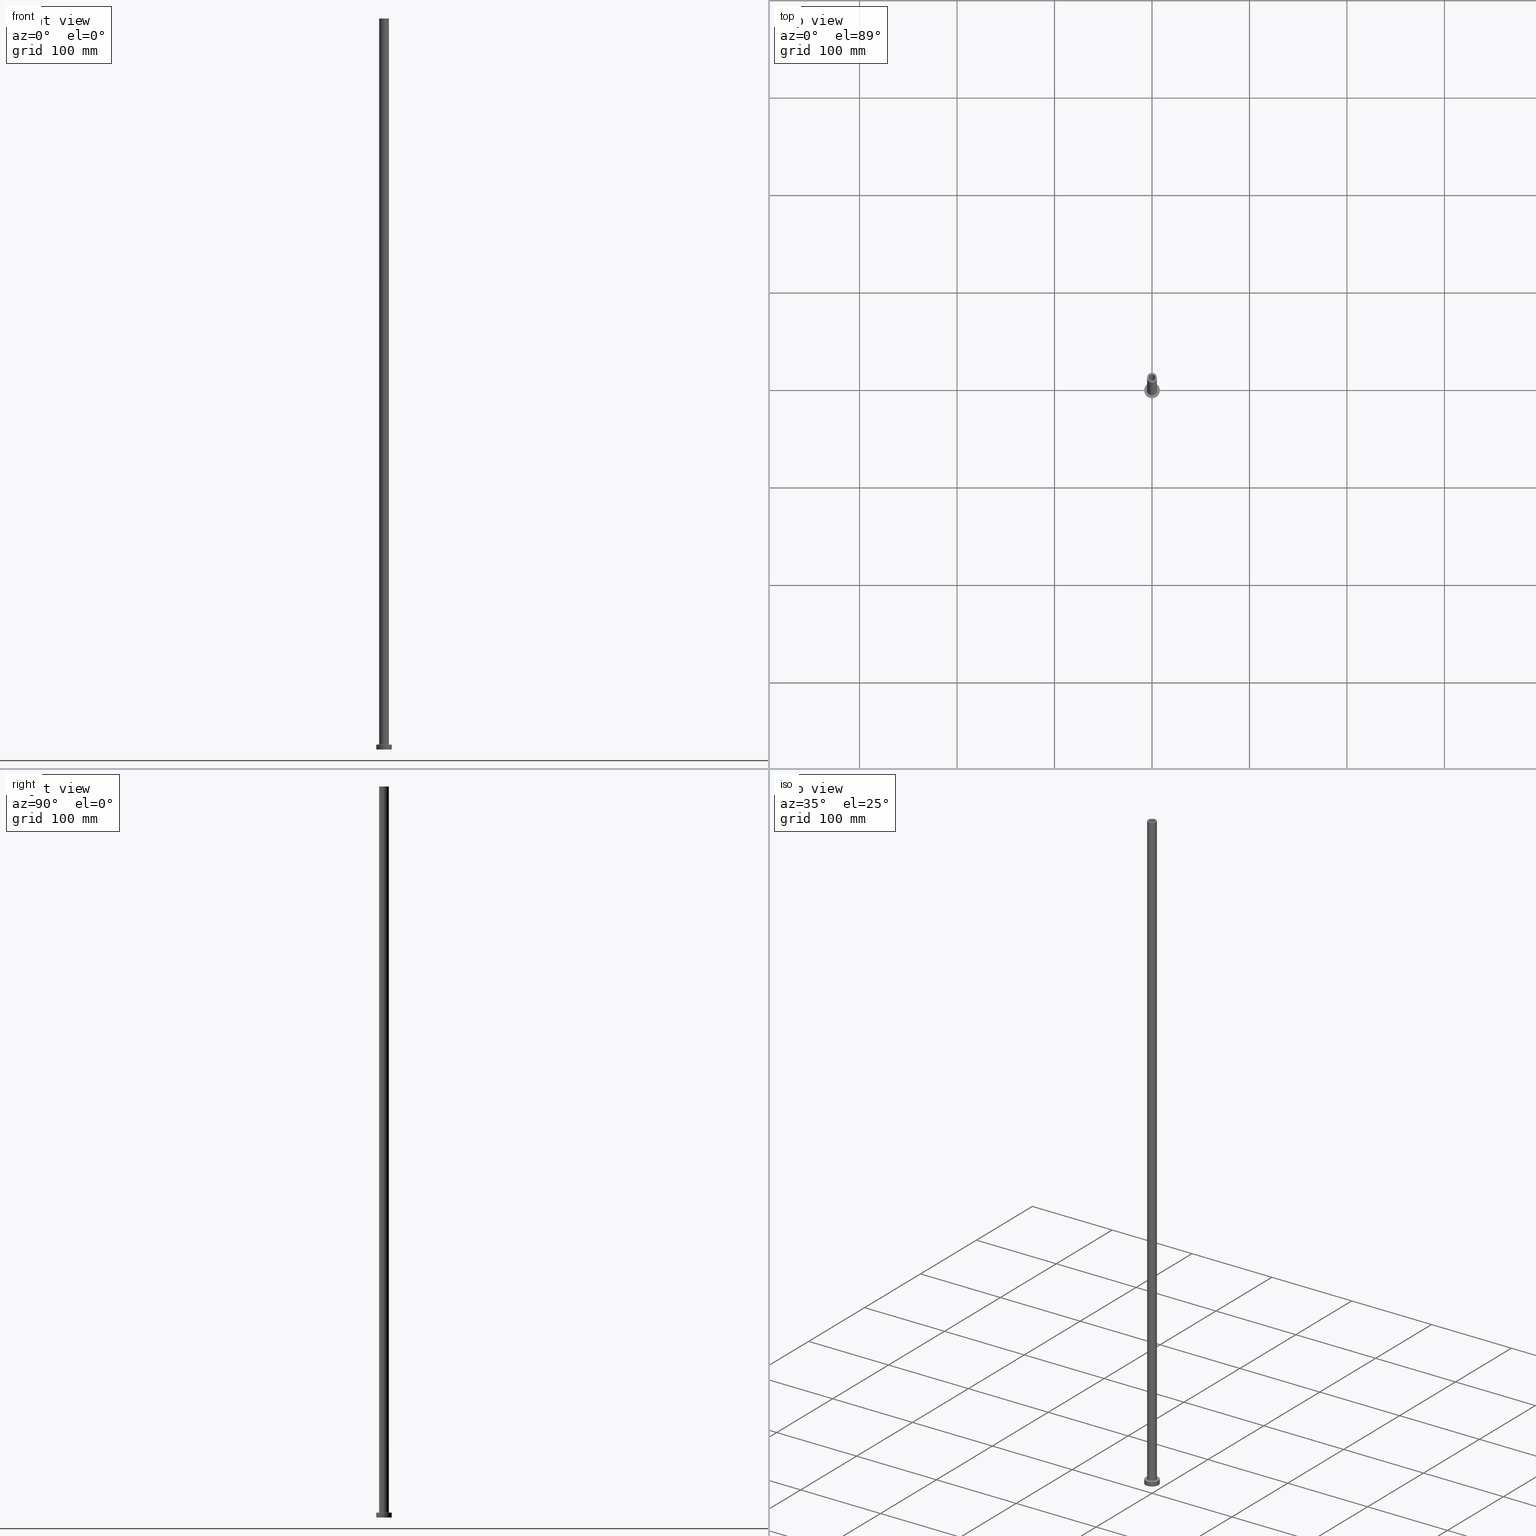
[diagram: canonical four-view strip — front | top / right | iso, engineering-drawing reading convention]
A machine part, canonical four-view strip (front | top / right | iso — engineering-drawing reading convention). The complete STEP part file that produces these views, byte-faithful:
ISO-10303-21;
HEADER;
FILE_DESCRIPTION (( 'STEP AP203' ),
    '1' );
FILE_NAME ('68ef.STEP',
    '2023-02-13T13:59:46',
    ( '' ),
    ( '' ),
    'SwSTEP 2.0',
    'SolidWorks 2019',
    '' );
FILE_SCHEMA (( 'CONFIG_CONTROL_DESIGN' ));
ENDSEC;

DATA;
#1 = VERTEX_POINT ( 'NONE', #306 ) ;
#2 = DIRECTION ( 'NONE',  ( 1.000000000000000000, 0.000000000000000000, -0.000000000000000000 ) ) ;
#3 = VECTOR ( 'NONE', #49, 1000.000000000000000 ) ;
#4 = CYLINDRICAL_SURFACE ( 'NONE', #377, 3.250000000000000444 ) ;
#5 = CARTESIAN_POINT ( 'NONE',  ( 5.500000000000000000, 0.000000000000000000, 4.999999999999975131 ) ) ;
#6 = ORIENTED_EDGE ( 'NONE', *, *, #98, .F. ) ;
#7 = CARTESIAN_POINT ( 'NONE',  ( -3.250000000000000444, 0.000000000000000000, 705.0000000000000000 ) ) ;
#8 = VERTEX_POINT ( 'NONE', #167 ) ;
#9 = VERTEX_POINT ( 'NONE', #165 ) ;
#10 = PLANE ( 'NONE',  #212 ) ;
#11 = AXIS2_PLACEMENT_3D ( 'NONE', #201, #347, #394 ) ;
#12 = DIRECTION ( 'NONE',  ( 0.000000000000000000, -1.000000000000000000, 0.000000000000000000 ) ) ;
#13 = ADVANCED_FACE ( 'NONE', ( #459 ), #203, .F. ) ;
#14 = ADVANCED_FACE ( 'NONE', ( #455 ), #171, .T. ) ;
#15 = EDGE_CURVE ( 'NONE', #160, #246, #121, .T. ) ;
#16 = EDGE_CURVE ( 'NONE', #184, #47, #166, .T. ) ;
#17 = ORIENTED_EDGE ( 'NONE', *, *, #428, .F. ) ;
#18 = FACE_OUTER_BOUND ( 'NONE', #340, .T. ) ;
#19 = PERSON_AND_ORGANIZATION ( #147, #439 ) ;
#20 = CIRCLE ( 'NONE', #45, 3.399999999999999911 ) ;
#21 = AXIS2_PLACEMENT_3D ( 'NONE', #299, #383, #332 ) ;
#22 = CARTESIAN_POINT ( 'NONE',  ( -8.000000000000000000, 0.000000000000000000, 0.000000000000000000 ) ) ;
#23 = ORIENTED_EDGE ( 'NONE', *, *, #381, .F. ) ;
#24 = CIRCLE ( 'NONE', #337, 3.399999999999999911 ) ;
#25 = VERTEX_POINT ( 'NONE', #277 ) ;
#26 = PERSON_AND_ORGANIZATION ( #147, #439 ) ;
#27 = ORIENTED_EDGE ( 'NONE', *, *, #139, .T. ) ;
#28 = AXIS2_PLACEMENT_3D ( 'NONE', #287, #214, #110 ) ;
#29 = DIRECTION ( 'NONE',  ( 0.000000000000000000, 0.000000000000000000, -1.000000000000000000 ) ) ;
#30 = ORIENTED_EDGE ( 'NONE', *, *, #172, .T. ) ;
#31 = AXIS2_PLACEMENT_3D ( 'NONE', #176, #279, #71 ) ;
#32 = DIRECTION ( 'NONE',  ( 1.000000000000000000, 0.000000000000000000, 0.000000000000000000 ) ) ;
#33 = ADVANCED_FACE ( 'NONE', ( #127 ), #423, .T. ) ;
#34 = CARTESIAN_POINT ( 'NONE',  ( 0.000000000000000000, 0.000000000000000000, 750.0000000000000000 ) ) ;
#35 = MANIFOLD_SOLID_BREP ( 'Odebrat vysunut�m4', #263 ) ;
#36 = FACE_BOUND ( 'NONE', #37, .T. ) ;
#37 = EDGE_LOOP ( 'NONE', ( #180, #84 ) ) ;
#38 = LINE ( 'NONE', #426, #272 ) ;
#39 = CIRCLE ( 'NONE', #292, 8.000000000000000000 ) ;
#40 = ADVANCED_FACE ( 'NONE', ( #68 ), #443, .F. ) ;
#41 = VECTOR ( 'NONE', #65, 1000.000000000000000 ) ;
#42 = CYLINDRICAL_SURFACE ( 'NONE', #303, 8.000000000000000000 ) ;
#43 = DIRECTION ( 'NONE',  ( 1.000000000000000000, 0.000000000000000000, 0.000000000000000000 ) ) ;
#44 = FACE_OUTER_BOUND ( 'NONE', #327, .T. ) ;
#45 = AXIS2_PLACEMENT_3D ( 'NONE', #115, #395, #256 ) ;
#46 = CARTESIAN_POINT ( 'NONE',  ( 5.500000000000000000, 0.000000000000000000, 5.499999999999949374 ) ) ;
#47 = VERTEX_POINT ( 'NONE', #460 ) ;
#48 = ORIENTED_EDGE ( 'NONE', *, *, #112, .F. ) ;
#49 = DIRECTION ( 'NONE',  ( -0.000000000000000000, -0.000000000000000000, -1.000000000000000000 ) ) ;
#50 = APPROVAL_STATUS ( 'not_yet_approved' ) ;
#51 = DIRECTION ( 'NONE',  ( 1.000000000000000000, 0.000000000000000000, 0.000000000000000000 ) ) ;
#52 = DIRECTION ( 'NONE',  ( 1.000000000000000000, 0.000000000000000000, 0.000000000000000000 ) ) ;
#53 = ORIENTED_EDGE ( 'NONE', *, *, #58, .T. ) ;
#54 = APPROVAL_ROLE ( '' ) ;
#55 = ORIENTED_EDGE ( 'NONE', *, *, #381, .T. ) ;
#56 = CALENDAR_DATE ( 2023, 13, 2 ) ;
#57 = COORDINATED_UNIVERSAL_TIME_OFFSET ( 1, 0, .AHEAD. ) ;
#58 = EDGE_CURVE ( 'NONE', #25, #246, #134, .T. ) ;
#59 = PERSON_AND_ORGANIZATION_ROLE ( 'design_supplier' ) ;
#60 = CC_DESIGN_APPROVAL ( #202, ( #137 ) ) ;
#61 = DIRECTION ( 'NONE',  ( 0.000000000000000000, 0.000000000000000000, 1.000000000000000000 ) ) ;
#62 = CARTESIAN_POINT ( 'NONE',  ( 0.000000000000000000, 0.000000000000000000, 0.000000000000000000 ) ) ;
#63 = DIRECTION ( 'NONE',  ( 0.000000000000000000, 0.000000000000000000, 1.000000000000000000 ) ) ;
#64 = CIRCLE ( 'NONE', #28, 0.5000000000000004441 ) ;
#65 = DIRECTION ( 'NONE',  ( 0.000000000000000000, 0.000000000000000000, -1.000000000000000000 ) ) ;
#66 = LOCAL_TIME ( 14, 59, 46.00000000000000000, #118 ) ;
#67 = ORIENTED_EDGE ( 'NONE', *, *, #143, .T. ) ;
#68 = FACE_OUTER_BOUND ( 'NONE', #400, .T. ) ;
#69 = CC_DESIGN_PERSON_AND_ORGANIZATION_ASSIGNMENT ( #90, #86, ( #175 ) ) ;
#70 = FACE_OUTER_BOUND ( 'NONE', #149, .T. ) ;
#71 = DIRECTION ( 'NONE',  ( -1.000000000000000000, 0.000000000000000000, 0.000000000000000000 ) ) ;
#72 = CARTESIAN_POINT ( 'NONE',  ( 5.000000000000000000, 6.123233995736766282E-16, 750.0000000000000000 ) ) ;
#73 = DIRECTION ( 'NONE',  ( 0.000000000000000000, 0.000000000000000000, 1.000000000000000000 ) ) ;
#74 = ORIENTED_EDGE ( 'NONE', *, *, #16, .T. ) ;
#75 = FACE_OUTER_BOUND ( 'NONE', #133, .T. ) ;
#76 = VECTOR ( 'NONE', #366, 1000.000000000000000 ) ;
#77 = ORIENTED_EDGE ( 'NONE', *, *, #436, .F. ) ;
#78 = ORIENTED_EDGE ( 'NONE', *, *, #144, .T. ) ;
#79 = CARTESIAN_POINT ( 'NONE',  ( 0.000000000000000000, 0.000000000000000000, 705.0000000000000000 ) ) ;
#80 = COORDINATED_UNIVERSAL_TIME_OFFSET ( 1, 0, .AHEAD. ) ;
#81 = DATE_TIME_ROLE ( 'classification_date' ) ;
#82 = DIRECTION ( 'NONE',  ( -1.000000000000000000, 0.000000000000000000, 0.000000000000000000 ) ) ;
#83 = CC_DESIGN_PERSON_AND_ORGANIZATION_ASSIGNMENT ( #346, #302, ( #137 ) ) ;
#84 = ORIENTED_EDGE ( 'NONE', *, *, #401, .T. ) ;
#85 = PERSON_AND_ORGANIZATION ( #147, #439 ) ;
#86 = PERSON_AND_ORGANIZATION_ROLE ( 'design_owner' ) ;
#87 = CIRCLE ( 'NONE', #353, 8.000000000000000000 ) ;
#88 = DATE_AND_TIME ( #195, #268 ) ;
#89 = ORIENTED_EDGE ( 'NONE', *, *, #258, .T. ) ;
#90 = PERSON_AND_ORGANIZATION ( #147, #439 ) ;
#91 = ORIENTED_EDGE ( 'NONE', *, *, #152, .F. ) ;
#92 = APPROVAL_STATUS ( 'not_yet_approved' ) ;
#93 = DIRECTION ( 'NONE',  ( 1.000000000000000000, 0.000000000000000000, 0.000000000000000000 ) ) ;
#94 = CIRCLE ( 'NONE', #418, 3.250000000000000444 ) ;
#95 = LOCAL_TIME ( 14, 59, 46.00000000000000000, #295 ) ;
#96 = ORIENTED_EDGE ( 'NONE', *, *, #424, .F. ) ;
#97 = VECTOR ( 'NONE', #248, 1000.000000000000000 ) ;
#98 = EDGE_CURVE ( 'NONE', #388, #382, #419, .T. ) ;
#99 = DIRECTION ( 'NONE',  ( -0.000000000000000000, -0.000000000000000000, -1.000000000000000000 ) ) ;
#100 = ORIENTED_EDGE ( 'NONE', *, *, #188, .F. ) ;
#101 = CARTESIAN_POINT ( 'NONE',  ( 3.399999999999999911, 4.163799117101000559E-16, 714.6166522241369421 ) ) ;
#102 = DIRECTION ( 'NONE',  ( -1.000000000000000000, 0.000000000000000000, 0.000000000000000000 ) ) ;
#103 = AXIS2_PLACEMENT_3D ( 'NONE', #264, #185, #51 ) ;
#104 = VERTEX_POINT ( 'NONE', #205 ) ;
#105 = ADVANCED_FACE ( 'NONE', ( #132, #421 ), #352, .F. ) ;
#106 = CARTESIAN_POINT ( 'NONE',  ( 0.000000000000000000, 0.000000000000000000, 750.0000000000000000 ) ) ;
#107 = ORIENTED_EDGE ( 'NONE', *, *, #116, .F. ) ;
#108 = PRODUCT_DEFINITION_SHAPE ( 'NONE', 'NONE',  #333 ) ;
#109 = DIRECTION ( 'NONE',  ( 0.000000000000000000, 0.000000000000000000, 1.000000000000000000 ) ) ;
#110 = DIRECTION ( 'NONE',  ( -1.000000000000000000, 1.224646799147351482E-16, 0.000000000000000000 ) ) ;
#111 = ORIENTED_EDGE ( 'NONE', *, *, #125, .F. ) ;
#112 = EDGE_CURVE ( 'NONE', #104, #8, #24, .T. ) ;
#113 = ORIENTED_EDGE ( 'NONE', *, *, #98, .T. ) ;
#114 = DIRECTION ( 'NONE',  ( -1.000000000000000000, 0.000000000000000000, 0.000000000000000000 ) ) ;
#115 = CARTESIAN_POINT ( 'NONE',  ( 0.000000000000000000, 0.000000000000000000, 705.0000000000000000 ) ) ;
#116 = EDGE_CURVE ( 'NONE', #382, #427, #458, .T. ) ;
#117 = DIRECTION ( 'NONE',  ( 0.000000000000000000, 0.000000000000000000, 1.000000000000000000 ) ) ;
#118 = COORDINATED_UNIVERSAL_TIME_OFFSET ( 1, 0, .AHEAD. ) ;
#119 =( GEOMETRIC_REPRESENTATION_CONTEXT ( 3 ) GLOBAL_UNCERTAINTY_ASSIGNED_CONTEXT ( ( #241 ) ) GLOBAL_UNIT_ASSIGNED_CONTEXT ( ( #446, #225, #410 ) ) REPRESENTATION_CONTEXT ( 'NONE', 'WORKASPACE' ) );
#120 = DIRECTION ( 'NONE',  ( -0.000000000000000000, -0.000000000000000000, -1.000000000000000000 ) ) ;
#121 = CIRCLE ( 'NONE', #414, 3.250000000000000444 ) ;
#122 = CARTESIAN_POINT ( 'NONE',  ( 0.000000000000000000, 0.000000000000000000, 5.499999999999949374 ) ) ;
#123 = DIRECTION ( 'NONE',  ( 0.000000000000000000, 0.000000000000000000, 1.000000000000000000 ) ) ;
#124 = AXIS2_PLACEMENT_3D ( 'NONE', #161, #267, #304 ) ;
#125 = EDGE_CURVE ( 'NONE', #388, #417, #87, .T. ) ;
#126 = CARTESIAN_POINT ( 'NONE',  ( 8.000000000000000000, 9.797174393178825657E-16, 5.000000000000000000 ) ) ;
#127 = FACE_OUTER_BOUND ( 'NONE', #322, .T. ) ;
#128 = CIRCLE ( 'NONE', #168, 5.000000000000000000 ) ;
#129 = AXIS2_PLACEMENT_3D ( 'NONE', #122, #378, #52 ) ;
#130 = CARTESIAN_POINT ( 'NONE',  ( 0.000000000000000000, 0.000000000000000000, 705.0000000000000000 ) ) ;
#131 = AXIS2_PLACEMENT_3D ( 'NONE', #236, #243, #385 ) ;
#132 = FACE_BOUND ( 'NONE', #233, .T. ) ;
#133 = EDGE_LOOP ( 'NONE', ( #140, #23 ) ) ;
#134 = LINE ( 'NONE', #271, #41 ) ;
#135 = EDGE_CURVE ( 'NONE', #178, #9, #237, .T. ) ;
#136 = VECTOR ( 'NONE', #244, 1000.000000000000000 ) ;
#137 = SECURITY_CLASSIFICATION ( '', '', #200 ) ;
#138 = CARTESIAN_POINT ( 'NONE',  ( 5.000000000000000000, 6.123233995736766282E-16, 750.0000000000000000 ) ) ;
#139 = EDGE_CURVE ( 'NONE', #47, #184, #431, .T. ) ;
#140 = ORIENTED_EDGE ( 'NONE', *, *, #280, .F. ) ;
#141 = CARTESIAN_POINT ( 'NONE',  ( 0.000000000000000000, 0.000000000000000000, 705.0000000000000000 ) ) ;
#142 = DIRECTION ( 'NONE',  ( -1.000000000000000000, 0.000000000000000000, 0.000000000000000000 ) ) ;
#143 = EDGE_CURVE ( 'NONE', #282, #8, #312, .T. ) ;
#144 = EDGE_CURVE ( 'NONE', #429, #218, #128, .T. ) ;
#145 = CYLINDRICAL_SURFACE ( 'NONE', #31, 3.399999999999999911 ) ;
#146 = LOCAL_TIME ( 14, 59, 46.00000000000000000, #80 ) ;
#147 = PERSON ( 'NEUR�EN�', 'NEUR�EN�', 'NEUR�EN�', ('NEUR�EN�'), ('NEUR�EN�'), ('NEUR�EN�') ) ;
#148 = AXIS2_PLACEMENT_3D ( 'NONE', #208, #416, #102 ) ;
#149 = EDGE_LOOP ( 'NONE', ( #308, #53, #457, #227 ) ) ;
#150 = DIRECTION ( 'NONE',  ( 1.000000000000000000, 0.000000000000000000, 0.000000000000000000 ) ) ;
#151 = LINE ( 'NONE', #437, #3 ) ;
#152 = EDGE_CURVE ( 'NONE', #417, #388, #39, .T. ) ;
#153 = DIRECTION ( 'NONE',  ( 0.000000000000000000, 0.000000000000000000, -1.000000000000000000 ) ) ;
#154 = CARTESIAN_POINT ( 'NONE',  ( -3.250000000000000444, 0.000000000000000000, 750.0000000000000000 ) ) ;
#155 = LOCAL_TIME ( 14, 59, 46.00000000000000000, #57 ) ;
#156 = DIRECTION ( 'NONE',  ( 1.000000000000000000, 0.000000000000000000, -0.000000000000000000 ) ) ;
#157 = PERSON_AND_ORGANIZATION_ROLE ( 'creator' ) ;
#158 = SHAPE_DEFINITION_REPRESENTATION ( #108, #338 ) ;
#159 = CC_DESIGN_DATE_AND_TIME_ASSIGNMENT ( #88, #81, ( #137 ) ) ;
#160 = VERTEX_POINT ( 'NONE', #7 ) ;
#161 = CARTESIAN_POINT ( 'NONE',  ( 0.000000000000000000, 0.000000000000000000, 5.499999999999949374 ) ) ;
#162 = AXIS2_PLACEMENT_3D ( 'NONE', #141, #316, #2 ) ;
#163 = APPROVAL_PERSON_ORGANIZATION ( #415, #202, #226 ) ;
#164 = PERSON_AND_ORGANIZATION_ROLE ( 'creator' ) ;
#165 = CARTESIAN_POINT ( 'NONE',  ( -5.000000000000000000, 0.000000000000000000, 750.0000000000000000 ) ) ;
#166 = CIRCLE ( 'NONE', #11, 5.500000000000000000 ) ;
#167 = CARTESIAN_POINT ( 'NONE',  ( 3.399999999999999911, 4.163799117101000559E-16, 0.000000000000000000 ) ) ;
#168 = AXIS2_PLACEMENT_3D ( 'NONE', #321, #73, #397 ) ;
#169 = CARTESIAN_POINT ( 'NONE',  ( 0.000000000000000000, 0.000000000000000000, 5.000000000000000000 ) ) ;
#170 = AXIS2_PLACEMENT_3D ( 'NONE', #276, #29, #240 ) ;
#171 = CYLINDRICAL_SURFACE ( 'NONE', #148, 5.000000000000000000 ) ;
#172 = EDGE_CURVE ( 'NONE', #25, #445, #94, .T. ) ;
#173 = PLANE ( 'NONE',  #162 ) ;
#174 = DIRECTION ( 'NONE',  ( 0.000000000000000000, 0.000000000000000000, -1.000000000000000000 ) ) ;
#175 = PRODUCT ( '68ef', '68ef', '', ( #301 ) ) ;
#176 = CARTESIAN_POINT ( 'NONE',  ( 0.000000000000000000, 0.000000000000000000, 714.6166522241369421 ) ) ;
#177 = ADVANCED_FACE ( 'NONE', ( #44 ), #145, .F. ) ;
#178 = VERTEX_POINT ( 'NONE', #138 ) ;
#179 = CARTESIAN_POINT ( 'NONE',  ( 3.399999999999999911, 4.163799117101000559E-16, 705.0000000000000000 ) ) ;
#180 = ORIENTED_EDGE ( 'NONE', *, *, #15, .T. ) ;
#181 = DIRECTION ( 'NONE',  ( 0.000000000000000000, 0.000000000000000000, -1.000000000000000000 ) ) ;
#182 = APPROVAL_PERSON_ORGANIZATION ( #19, #413, #336 ) ;
#183 = ORIENTED_EDGE ( 'NONE', *, *, #188, .T. ) ;
#184 = VERTEX_POINT ( 'NONE', #5 ) ;
#185 = DIRECTION ( 'NONE',  ( 0.000000000000000000, 0.000000000000000000, 1.000000000000000000 ) ) ;
#186 = ADVANCED_FACE ( 'NONE', ( #425, #219 ), #10, .T. ) ;
#187 = DIRECTION ( 'NONE',  ( 1.000000000000000000, 0.000000000000000000, 0.000000000000000000 ) ) ;
#188 = EDGE_CURVE ( 'NONE', #218, #47, #64, .T. ) ;
#189 = DATE_AND_TIME ( #262, #66 ) ;
#190 = LINE ( 'NONE', #331, #345 ) ;
#191 = ORIENTED_EDGE ( 'NONE', *, *, #172, .F. ) ;
#192 = CALENDAR_DATE ( 2023, 13, 2 ) ;
#193 = CIRCLE ( 'NONE', #342, 0.5000000000000004441 ) ;
#194 = CARTESIAN_POINT ( 'NONE',  ( 0.000000000000000000, 0.000000000000000000, 750.0000000000000000 ) ) ;
#195 = CALENDAR_DATE ( 2023, 13, 2 ) ;
#196 = EDGE_LOOP ( 'NONE', ( #252, #107 ) ) ;
#197 = FACE_OUTER_BOUND ( 'NONE', #349, .T. ) ;
#198 = APPLICATION_PROTOCOL_DEFINITION ( 'international standard', 'config_control_design', 1994, #231 ) ;
#199 = AXIS2_PLACEMENT_3D ( 'NONE', #358, #109, #403 ) ;
#200 = SECURITY_CLASSIFICATION_LEVEL ( 'unclassified' ) ;
#201 = CARTESIAN_POINT ( 'NONE',  ( 0.000000000000000000, 0.000000000000000000, 5.000000000000000000 ) ) ;
#202 = APPROVAL ( #92, 'NEUR�EN�' ) ;
#203 = CYLINDRICAL_SURFACE ( 'NONE', #170, 3.399999999999999911 ) ;
#204 = ORIENTED_EDGE ( 'NONE', *, *, #280, .T. ) ;
#205 = CARTESIAN_POINT ( 'NONE',  ( -3.399999999999999911, 0.000000000000000000, 0.000000000000000000 ) ) ;
#206 = APPLICATION_CONTEXT ( 'configuration controlled 3d designs of mechanical parts and assemblies' ) ;
#207 = AXIS2_PLACEMENT_3D ( 'NONE', #290, #376, #234 ) ;
#208 = CARTESIAN_POINT ( 'NONE',  ( 0.000000000000000000, 0.000000000000000000, 750.0000000000000000 ) ) ;
#209 = EDGE_LOOP ( 'NONE', ( #111, #113, #343, #255 ) ) ;
#210 = DIRECTION ( 'NONE',  ( 0.000000000000000000, 0.000000000000000000, 1.000000000000000000 ) ) ;
#211 = DIRECTION ( 'NONE',  ( 0.000000000000000000, 0.000000000000000000, 1.000000000000000000 ) ) ;
#212 = AXIS2_PLACEMENT_3D ( 'NONE', #286, #325, #320 ) ;
#213 = APPROVAL_PERSON_ORGANIZATION ( #344, #317, #54 ) ;
#214 = DIRECTION ( 'NONE',  ( 1.224646799147353207E-16, 1.000000000000000000, -0.000000000000000000 ) ) ;
#215 = ADVANCED_FACE ( 'NONE', ( #362 ), #42, .T. ) ;
#216 = CARTESIAN_POINT ( 'NONE',  ( 3.250000000000000444, 3.980102097228898231E-16, 705.0000000000000000 ) ) ;
#217 = DIRECTION ( 'NONE',  ( 0.000000000000000000, 0.000000000000000000, 1.000000000000000000 ) ) ;
#218 = VERTEX_POINT ( 'NONE', #434 ) ;
#219 = FACE_OUTER_BOUND ( 'NONE', #330, .T. ) ;
#220 = CARTESIAN_POINT ( 'NONE',  ( 8.000000000000000000, 9.797174393178825657E-16, 5.000000000000000000 ) ) ;
#221 = DATE_AND_TIME ( #192, #146 ) ;
#222 = APPROVAL_DATE_TIME ( #449, #202 ) ;
#223 = ORIENTED_EDGE ( 'NONE', *, *, #436, .T. ) ;
#224 = DIRECTION ( 'NONE',  ( -0.000000000000000000, -0.000000000000000000, -1.000000000000000000 ) ) ;
#225 =( NAMED_UNIT ( * ) PLANE_ANGLE_UNIT ( ) SI_UNIT ( $, .RADIAN. ) );
#226 = APPROVAL_ROLE ( '' ) ;
#227 = ORIENTED_EDGE ( 'NONE', *, *, #407, .F. ) ;
#228 = APPROVAL_STATUS ( 'not_yet_approved' ) ;
#229 = ADVANCED_FACE ( 'NONE', ( #284 ), #430, .F. ) ;
#230 = CIRCLE ( 'NONE', #103, 3.250000000000000444 ) ;
#231 = APPLICATION_CONTEXT ( 'configuration controlled 3d designs of mechanical parts and assemblies' ) ;
#232 = CIRCLE ( 'NONE', #129, 5.000000000000000000 ) ;
#233 = EDGE_LOOP ( 'NONE', ( #48, #17 ) ) ;
#234 = DIRECTION ( 'NONE',  ( 1.000000000000000000, 0.000000000000000000, 0.000000000000000000 ) ) ;
#235 = CC_DESIGN_DATE_AND_TIME_ASSIGNMENT ( #221, #373, ( #333 ) ) ;
#236 = CARTESIAN_POINT ( 'NONE',  ( 0.000000000000000000, 0.000000000000000000, 0.000000000000000000 ) ) ;
#237 = CIRCLE ( 'NONE', #450, 5.000000000000000000 ) ;
#238 = CC_DESIGN_APPROVAL ( #413, ( #369 ) ) ;
#239 = AXIS2_PLACEMENT_3D ( 'NONE', #456, #453, #387 ) ;
#240 = DIRECTION ( 'NONE',  ( -1.000000000000000000, 0.000000000000000000, 0.000000000000000000 ) ) ;
#241 = UNCERTAINTY_MEASURE_WITH_UNIT (LENGTH_MEASURE( 1.000000000000000082E-05 ), #446, 'distance_accuracy_value', 'NONE');
#242 = ORIENTED_EDGE ( 'NONE', *, *, #311, .F. ) ;
#243 = DIRECTION ( 'NONE',  ( 0.000000000000000000, 0.000000000000000000, 1.000000000000000000 ) ) ;
#244 = DIRECTION ( 'NONE',  ( 0.000000000000000000, 0.000000000000000000, -1.000000000000000000 ) ) ;
#245 = AXIS2_PLACEMENT_3D ( 'NONE', #169, #99, #390 ) ;
#246 = VERTEX_POINT ( 'NONE', #216 ) ;
#247 = ORIENTED_EDGE ( 'NONE', *, *, #447, .T. ) ;
#248 = DIRECTION ( 'NONE',  ( -0.000000000000000000, -0.000000000000000000, -1.000000000000000000 ) ) ;
#249 = CARTESIAN_POINT ( 'NONE',  ( 0.000000000000000000, 0.000000000000000000, 5.000000000000000000 ) ) ;
#250 = ORIENTED_EDGE ( 'NONE', *, *, #139, .F. ) ;
#251 = DIRECTION ( 'NONE',  ( 0.000000000000000000, 0.000000000000000000, -1.000000000000000000 ) ) ;
#252 = ORIENTED_EDGE ( 'NONE', *, *, #257, .F. ) ;
#253 = CARTESIAN_POINT ( 'NONE',  ( 0.000000000000000000, 0.000000000000000000, 750.0000000000000000 ) ) ;
#254 = DIRECTION ( 'NONE',  ( -0.000000000000000000, -0.000000000000000000, -1.000000000000000000 ) ) ;
#255 = ORIENTED_EDGE ( 'NONE', *, *, #372, .F. ) ;
#256 = DIRECTION ( 'NONE',  ( 1.000000000000000000, 0.000000000000000000, 0.000000000000000000 ) ) ;
#257 = EDGE_CURVE ( 'NONE', #427, #382, #393, .T. ) ;
#258 = EDGE_CURVE ( 'NONE', #178, #429, #402, .T. ) ;
#259 = CIRCLE ( 'NONE', #318, 3.399999999999999911 ) ;
#260 = CARTESIAN_POINT ( 'NONE',  ( 0.000000000000000000, 0.000000000000000000, 750.0000000000000000 ) ) ;
#261 = VECTOR ( 'NONE', #224, 1000.000000000000000 ) ;
#262 = CALENDAR_DATE ( 2023, 13, 2 ) ;
#263 = CLOSED_SHELL ( 'NONE', ( #341, #13, #40, #14, #215, #33, #360, #105, #412, #186, #461, #177, #323, #229 ) ) ;
#264 = CARTESIAN_POINT ( 'NONE',  ( 0.000000000000000000, 0.000000000000000000, 705.0000000000000000 ) ) ;
#265 = DATE_AND_TIME ( #442, #95 ) ;
#266 = ORIENTED_EDGE ( 'NONE', *, *, #135, .F. ) ;
#267 = DIRECTION ( 'NONE',  ( 0.000000000000000000, 0.000000000000000000, 1.000000000000000000 ) ) ;
#268 = LOCAL_TIME ( 14, 59, 46.00000000000000000, #380 ) ;
#269 = DIRECTION ( 'NONE',  ( -0.000000000000000000, -0.000000000000000000, -1.000000000000000000 ) ) ;
#270 = PERSON_AND_ORGANIZATION ( #147, #439 ) ;
#271 = CARTESIAN_POINT ( 'NONE',  ( 3.250000000000000444, 3.980102097228898231E-16, 750.0000000000000000 ) ) ;
#272 = VECTOR ( 'NONE', #174, 1000.000000000000000 ) ;
#273 = CIRCLE ( 'NONE', #21, 3.399999999999999911 ) ;
#274 = ORIENTED_EDGE ( 'NONE', *, *, #424, .T. ) ;
#275 = CARTESIAN_POINT ( 'NONE',  ( 0.000000000000000000, 0.000000000000000000, 0.000000000000000000 ) ) ;
#276 = CARTESIAN_POINT ( 'NONE',  ( 0.000000000000000000, 0.000000000000000000, 714.6166522241369421 ) ) ;
#277 = CARTESIAN_POINT ( 'NONE',  ( 3.250000000000000444, 3.980102097228898231E-16, 750.0000000000000000 ) ) ;
#278 = AXIS2_PLACEMENT_3D ( 'NONE', #399, #211, #43 ) ;
#279 = DIRECTION ( 'NONE',  ( 0.000000000000000000, 0.000000000000000000, -1.000000000000000000 ) ) ;
#280 = EDGE_CURVE ( 'NONE', #1, #282, #20, .T. ) ;
#281 = CC_DESIGN_PERSON_AND_ORGANIZATION_ASSIGNMENT ( #26, #157, ( #333 ) ) ;
#282 = VERTEX_POINT ( 'NONE', #179 ) ;
#283 = CARTESIAN_POINT ( 'NONE',  ( 0.000000000000000000, 0.000000000000000000, 750.0000000000000000 ) ) ;
#284 = FACE_OUTER_BOUND ( 'NONE', #374, .T. ) ;
#285 = ORIENTED_EDGE ( 'NONE', *, *, #305, .F. ) ;
#286 = CARTESIAN_POINT ( 'NONE',  ( 0.000000000000000000, 0.000000000000000000, 750.0000000000000000 ) ) ;
#287 = CARTESIAN_POINT ( 'NONE',  ( -5.500000000000000000, 6.735557395310442023E-16, 5.499999999999949374 ) ) ;
#288 = ORIENTED_EDGE ( 'NONE', *, *, #125, .T. ) ;
#289 = DIRECTION ( 'NONE',  ( -1.000000000000000000, 0.000000000000000000, 0.000000000000000000 ) ) ;
#290 = CARTESIAN_POINT ( 'NONE',  ( 0.000000000000000000, 0.000000000000000000, 0.000000000000000000 ) ) ;
#291 = ORIENTED_EDGE ( 'NONE', *, *, #135, .T. ) ;
#292 = AXIS2_PLACEMENT_3D ( 'NONE', #435, #217, #150 ) ;
#293 = DIRECTION ( 'NONE',  ( 0.000000000000000000, 0.000000000000000000, -1.000000000000000000 ) ) ;
#294 = AXIS2_PLACEMENT_3D ( 'NONE', #194, #123, #339 ) ;
#295 = COORDINATED_UNIVERSAL_TIME_OFFSET ( 1, 0, .AHEAD. ) ;
#296 = CC_DESIGN_PERSON_AND_ORGANIZATION_ASSIGNMENT ( #85, #164, ( #369 ) ) ;
#297 = FACE_BOUND ( 'NONE', #315, .T. ) ;
#298 = ORIENTED_EDGE ( 'NONE', *, *, #447, .F. ) ;
#299 = CARTESIAN_POINT ( 'NONE',  ( 0.000000000000000000, 0.000000000000000000, 0.000000000000000000 ) ) ;
#300 = ORIENTED_EDGE ( 'NONE', *, *, #407, .T. ) ;
#301 = MECHANICAL_CONTEXT ( 'NONE', #206, 'mechanical' ) ;
#302 = PERSON_AND_ORGANIZATION_ROLE ( 'classification_officer' ) ;
#303 = AXIS2_PLACEMENT_3D ( 'NONE', #249, #254, #142 ) ;
#304 = DIRECTION ( 'NONE',  ( 1.000000000000000000, 0.000000000000000000, 0.000000000000000000 ) ) ;
#305 = EDGE_CURVE ( 'NONE', #445, #25, #368, .T. ) ;
#306 = CARTESIAN_POINT ( 'NONE',  ( -3.399999999999999911, 0.000000000000000000, 705.0000000000000000 ) ) ;
#307 = DIRECTION ( 'NONE',  ( -1.000000000000000000, 0.000000000000000000, 0.000000000000000000 ) ) ;
#308 = ORIENTED_EDGE ( 'NONE', *, *, #305, .T. ) ;
#309 = EDGE_LOOP ( 'NONE', ( #285, #191 ) ) ;
#310 = DIRECTION ( 'NONE',  ( 1.000000000000000000, 0.000000000000000000, 0.000000000000000000 ) ) ;
#311 = EDGE_CURVE ( 'NONE', #1, #104, #38, .T. ) ;
#312 = LINE ( 'NONE', #101, #136 ) ;
#313 = ORIENTED_EDGE ( 'NONE', *, *, #16, .F. ) ;
#314 = DIRECTION ( 'NONE',  ( -0.000000000000000000, -0.000000000000000000, -1.000000000000000000 ) ) ;
#315 = EDGE_LOOP ( 'NONE', ( #74, #27 ) ) ;
#316 = DIRECTION ( 'NONE',  ( 0.000000000000000000, 0.000000000000000000, 1.000000000000000000 ) ) ;
#317 = APPROVAL ( #228, 'NEUR�EN�' ) ;
#318 = AXIS2_PLACEMENT_3D ( 'NONE', #79, #117, #187 ) ;
#319 = DIRECTION ( 'NONE',  ( 0.000000000000000000, 0.000000000000000000, 1.000000000000000000 ) ) ;
#320 = DIRECTION ( 'NONE',  ( 1.000000000000000000, 0.000000000000000000, -0.000000000000000000 ) ) ;
#321 = CARTESIAN_POINT ( 'NONE',  ( 0.000000000000000000, 0.000000000000000000, 5.499999999999949374 ) ) ;
#322 = EDGE_LOOP ( 'NONE', ( #6, #91, #350, #351 ) ) ;
#323 = ADVANCED_FACE ( 'NONE', ( #36, #75 ), #173, .F. ) ;
#324 = CC_DESIGN_PERSON_AND_ORGANIZATION_ASSIGNMENT ( #270, #59, ( #369 ) ) ;
#325 = DIRECTION ( 'NONE',  ( 0.000000000000000000, 0.000000000000000000, 1.000000000000000000 ) ) ;
#326 = AXIS2_PLACEMENT_3D ( 'NONE', #357, #314, #307 ) ;
#327 = EDGE_LOOP ( 'NONE', ( #329, #55, #379, #363 ) ) ;
#328 = LINE ( 'NONE', #334, #261 ) ;
#329 = ORIENTED_EDGE ( 'NONE', *, *, #143, .F. ) ;
#330 = EDGE_LOOP ( 'NONE', ( #247, #291 ) ) ;
#331 = CARTESIAN_POINT ( 'NONE',  ( -3.250000000000000444, 0.000000000000000000, 750.0000000000000000 ) ) ;
#332 = DIRECTION ( 'NONE',  ( 1.000000000000000000, 0.000000000000000000, 0.000000000000000000 ) ) ;
#333 = PRODUCT_DEFINITION ( 'NEZN�M�', '', #369, #452 ) ;
#334 = CARTESIAN_POINT ( 'NONE',  ( -5.000000000000000000, 0.000000000000000000, 750.0000000000000000 ) ) ;
#335 = EDGE_LOOP ( 'NONE', ( #440, #288 ) ) ;
#336 = APPROVAL_ROLE ( '' ) ;
#337 = AXIS2_PLACEMENT_3D ( 'NONE', #275, #269, #93 ) ;
#338 = ADVANCED_BREP_SHAPE_REPRESENTATION ( '68ef', ( #35, #207 ), #119 ) ;
#339 = DIRECTION ( 'NONE',  ( 1.000000000000000000, 0.000000000000000000, 0.000000000000000000 ) ) ;
#340 = EDGE_LOOP ( 'NONE', ( #396, #298, #274, #223 ) ) ;
#341 = ADVANCED_FACE ( 'NONE', ( #70 ), #4, .F. ) ;
#342 = AXIS2_PLACEMENT_3D ( 'NONE', #46, #12, #293 ) ;
#343 = ORIENTED_EDGE ( 'NONE', *, *, #116, .T. ) ;
#344 = PERSON_AND_ORGANIZATION ( #147, #439 ) ;
#345 = VECTOR ( 'NONE', #153, 1000.000000000000000 ) ;
#346 = PERSON_AND_ORGANIZATION ( #147, #439 ) ;
#347 = DIRECTION ( 'NONE',  ( -0.000000000000000000, -0.000000000000000000, -1.000000000000000000 ) ) ;
#348 = DIRECTION ( 'NONE',  ( 1.000000000000000000, 0.000000000000000000, 0.000000000000000000 ) ) ;
#349 = EDGE_LOOP ( 'NONE', ( #100, #384, #361, #250 ) ) ;
#350 = ORIENTED_EDGE ( 'NONE', *, *, #372, .T. ) ;
#351 = ORIENTED_EDGE ( 'NONE', *, *, #257, .T. ) ;
#352 = PLANE ( 'NONE',  #364 ) ;
#353 = AXIS2_PLACEMENT_3D ( 'NONE', #392, #61, #348 ) ;
#354 = AXIS2_PLACEMENT_3D ( 'NONE', #106, #181, #114 ) ;
#355 = DIRECTION ( 'NONE',  ( 1.000000000000000000, 0.000000000000000000, -0.000000000000000000 ) ) ;
#356 = EDGE_CURVE ( 'NONE', #429, #184, #193, .T. ) ;
#357 = CARTESIAN_POINT ( 'NONE',  ( 0.000000000000000000, 0.000000000000000000, 5.000000000000000000 ) ) ;
#358 = CARTESIAN_POINT ( 'NONE',  ( 0.000000000000000000, 0.000000000000000000, 750.0000000000000000 ) ) ;
#359 = CC_DESIGN_SECURITY_CLASSIFICATION ( #137, ( #369 ) ) ;
#360 = ADVANCED_FACE ( 'NONE', ( #297, #444 ), #375, .T. ) ;
#361 = ORIENTED_EDGE ( 'NONE', *, *, #356, .T. ) ;
#362 = FACE_OUTER_BOUND ( 'NONE', #209, .T. ) ;
#363 = ORIENTED_EDGE ( 'NONE', *, *, #112, .T. ) ;
#364 = AXIS2_PLACEMENT_3D ( 'NONE', #62, #210, #355 ) ;
#365 = ORIENTED_EDGE ( 'NONE', *, *, #428, .T. ) ;
#366 = DIRECTION ( 'NONE',  ( -0.000000000000000000, -0.000000000000000000, -1.000000000000000000 ) ) ;
#367 = DIRECTION ( 'NONE',  ( 1.000000000000000000, 0.000000000000000000, 0.000000000000000000 ) ) ;
#368 = CIRCLE ( 'NONE', #199, 3.250000000000000444 ) ;
#369 = PRODUCT_DEFINITION_FORMATION_WITH_SPECIFIED_SOURCE ( 'LIBOVOLN�', '', #175, .NOT_KNOWN. ) ;
#370 = CARTESIAN_POINT ( 'NONE',  ( 8.000000000000000000, 9.797174393178825657E-16, 0.000000000000000000 ) ) ;
#371 = DIRECTION ( 'NONE',  ( 0.000000000000000000, 0.000000000000000000, 1.000000000000000000 ) ) ;
#372 = EDGE_CURVE ( 'NONE', #417, #427, #151, .T. ) ;
#373 = DATE_TIME_ROLE ( 'creation_date' ) ;
#374 = EDGE_LOOP ( 'NONE', ( #391, #30, #300, #422 ) ) ;
#375 = PLANE ( 'NONE',  #404 ) ;
#376 = DIRECTION ( 'NONE',  ( 0.000000000000000000, 0.000000000000000000, 1.000000000000000000 ) ) ;
#377 = AXIS2_PLACEMENT_3D ( 'NONE', #283, #251, #289 ) ;
#378 = DIRECTION ( 'NONE',  ( 0.000000000000000000, 0.000000000000000000, 1.000000000000000000 ) ) ;
#379 = ORIENTED_EDGE ( 'NONE', *, *, #311, .T. ) ;
#380 = COORDINATED_UNIVERSAL_TIME_OFFSET ( 1, 0, .AHEAD. ) ;
#381 = EDGE_CURVE ( 'NONE', #282, #1, #259, .T. ) ;
#382 = VERTEX_POINT ( 'NONE', #370 ) ;
#383 = DIRECTION ( 'NONE',  ( -0.000000000000000000, -0.000000000000000000, -1.000000000000000000 ) ) ;
#384 = ORIENTED_EDGE ( 'NONE', *, *, #144, .F. ) ;
#385 = DIRECTION ( 'NONE',  ( 1.000000000000000000, 0.000000000000000000, 0.000000000000000000 ) ) ;
#386 = TOROIDAL_SURFACE ( 'NONE', #124, 5.500000000000000000, 0.5000000000000000000 ) ;
#387 = DIRECTION ( 'NONE',  ( 1.000000000000000000, 0.000000000000000000, 0.000000000000000000 ) ) ;
#388 = VERTEX_POINT ( 'NONE', #220 ) ;
#389 = EDGE_LOOP ( 'NONE', ( #266, #89, #78, #96 ) ) ;
#390 = DIRECTION ( 'NONE',  ( 1.000000000000000000, 0.000000000000000000, 0.000000000000000000 ) ) ;
#391 = ORIENTED_EDGE ( 'NONE', *, *, #58, .F. ) ;
#392 = CARTESIAN_POINT ( 'NONE',  ( 0.000000000000000000, 0.000000000000000000, 5.000000000000000000 ) ) ;
#393 = CIRCLE ( 'NONE', #278, 8.000000000000000000 ) ;
#394 = DIRECTION ( 'NONE',  ( 1.000000000000000000, 0.000000000000000000, 0.000000000000000000 ) ) ;
#395 = DIRECTION ( 'NONE',  ( 0.000000000000000000, 0.000000000000000000, 1.000000000000000000 ) ) ;
#396 = ORIENTED_EDGE ( 'NONE', *, *, #258, .F. ) ;
#397 = DIRECTION ( 'NONE',  ( 1.000000000000000000, 0.000000000000000000, 0.000000000000000000 ) ) ;
#398 = CC_DESIGN_APPROVAL ( #317, ( #333 ) ) ;
#399 = CARTESIAN_POINT ( 'NONE',  ( 0.000000000000000000, 0.000000000000000000, 0.000000000000000000 ) ) ;
#400 = EDGE_LOOP ( 'NONE', ( #77, #183, #313, #433 ) ) ;
#401 = EDGE_CURVE ( 'NONE', #246, #160, #230, .T. ) ;
#402 = LINE ( 'NONE', #72, #76 ) ;
#403 = DIRECTION ( 'NONE',  ( 1.000000000000000000, 0.000000000000000000, 0.000000000000000000 ) ) ;
#404 = AXIS2_PLACEMENT_3D ( 'NONE', #405, #371, #156 ) ;
#405 = CARTESIAN_POINT ( 'NONE',  ( 0.000000000000000000, 0.000000000000000000, 5.000000000000000000 ) ) ;
#406 = APPROVAL_DATE_TIME ( #189, #317 ) ;
#407 = EDGE_CURVE ( 'NONE', #445, #160, #190, .T. ) ;
#408 = CARTESIAN_POINT ( 'NONE',  ( -8.000000000000000000, 0.000000000000000000, 5.000000000000000000 ) ) ;
#409 = APPROVAL_DATE_TIME ( #265, #413 ) ;
#410 =( NAMED_UNIT ( * ) SI_UNIT ( $, .STERADIAN. ) SOLID_ANGLE_UNIT ( ) );
#411 = EDGE_LOOP ( 'NONE', ( #204, #67, #365, #242 ) ) ;
#412 = ADVANCED_FACE ( 'NONE', ( #18 ), #441, .T. ) ;
#413 = APPROVAL ( #50, 'NEUR�EN�' ) ;
#414 = AXIS2_PLACEMENT_3D ( 'NONE', #130, #63, #310 ) ;
#415 = PERSON_AND_ORGANIZATION ( #147, #439 ) ;
#416 = DIRECTION ( 'NONE',  ( -0.000000000000000000, -0.000000000000000000, -1.000000000000000000 ) ) ;
#417 = VERTEX_POINT ( 'NONE', #408 ) ;
#418 = AXIS2_PLACEMENT_3D ( 'NONE', #253, #319, #367 ) ;
#419 = LINE ( 'NONE', #126, #97 ) ;
#420 = DIRECTION ( 'NONE',  ( 0.000000000000000000, 0.000000000000000000, 1.000000000000000000 ) ) ;
#421 = FACE_OUTER_BOUND ( 'NONE', #196, .T. ) ;
#422 = ORIENTED_EDGE ( 'NONE', *, *, #401, .F. ) ;
#423 = CYLINDRICAL_SURFACE ( 'NONE', #326, 8.000000000000000000 ) ;
#424 = EDGE_CURVE ( 'NONE', #9, #218, #328, .T. ) ;
#425 = FACE_BOUND ( 'NONE', #309, .T. ) ;
#426 = CARTESIAN_POINT ( 'NONE',  ( -3.399999999999999911, 0.000000000000000000, 714.6166522241369421 ) ) ;
#427 = VERTEX_POINT ( 'NONE', #22 ) ;
#428 = EDGE_CURVE ( 'NONE', #8, #104, #273, .T. ) ;
#429 = VERTEX_POINT ( 'NONE', #448 ) ;
#430 = CYLINDRICAL_SURFACE ( 'NONE', #354, 3.250000000000000444 ) ;
#431 = CIRCLE ( 'NONE', #245, 5.500000000000000000 ) ;
#432 = AXIS2_PLACEMENT_3D ( 'NONE', #260, #120, #82 ) ;
#433 = ORIENTED_EDGE ( 'NONE', *, *, #356, .F. ) ;
#434 = CARTESIAN_POINT ( 'NONE',  ( -5.000000000000000000, 0.000000000000000000, 5.499999999999949374 ) ) ;
#435 = CARTESIAN_POINT ( 'NONE',  ( 0.000000000000000000, 0.000000000000000000, 5.000000000000000000 ) ) ;
#436 = EDGE_CURVE ( 'NONE', #218, #429, #232, .T. ) ;
#437 = CARTESIAN_POINT ( 'NONE',  ( -8.000000000000000000, 0.000000000000000000, 5.000000000000000000 ) ) ;
#438 = APPLICATION_PROTOCOL_DEFINITION ( 'international standard', 'config_control_design', 1994, #206 ) ;
#439 = ORGANIZATION ( 'NEUR�EN�', 'NEUR�EN�', '' ) ;
#440 = ORIENTED_EDGE ( 'NONE', *, *, #152, .T. ) ;
#441 = CYLINDRICAL_SURFACE ( 'NONE', #432, 5.000000000000000000 ) ;
#442 = CALENDAR_DATE ( 2023, 13, 2 ) ;
#443 = TOROIDAL_SURFACE ( 'NONE', #239, 5.500000000000000000, 0.5000000000000000000 ) ;
#444 = FACE_OUTER_BOUND ( 'NONE', #335, .T. ) ;
#445 = VERTEX_POINT ( 'NONE', #154 ) ;
#446 =( LENGTH_UNIT ( ) NAMED_UNIT ( * ) SI_UNIT ( .MILLI., .METRE. ) );
#447 = EDGE_CURVE ( 'NONE', #9, #178, #451, .T. ) ;
#448 = CARTESIAN_POINT ( 'NONE',  ( 5.000000000000000000, 6.123233995736766282E-16, 5.499999999999949374 ) ) ;
#449 = DATE_AND_TIME ( #56, #155 ) ;
#450 = AXIS2_PLACEMENT_3D ( 'NONE', #34, #420, #32 ) ;
#451 = CIRCLE ( 'NONE', #294, 5.000000000000000000 ) ;
#452 = DESIGN_CONTEXT ( 'detailed design', #231, 'design' ) ;
#453 = DIRECTION ( 'NONE',  ( 0.000000000000000000, 0.000000000000000000, 1.000000000000000000 ) ) ;
#454 = PRODUCT_RELATED_PRODUCT_CATEGORY ( 'detail', '', ( #175 ) ) ;
#455 = FACE_OUTER_BOUND ( 'NONE', #389, .T. ) ;
#456 = CARTESIAN_POINT ( 'NONE',  ( 0.000000000000000000, 0.000000000000000000, 5.499999999999949374 ) ) ;
#457 = ORIENTED_EDGE ( 'NONE', *, *, #15, .F. ) ;
#458 = CIRCLE ( 'NONE', #131, 8.000000000000000000 ) ;
#459 = FACE_OUTER_BOUND ( 'NONE', #411, .T. ) ;
#460 = CARTESIAN_POINT ( 'NONE',  ( -5.500000000000000000, 6.735557395310442023E-16, 4.999999999999975131 ) ) ;
#461 = ADVANCED_FACE ( 'NONE', ( #197 ), #386, .F. ) ;
ENDSEC;
END-ISO-10303-21;
